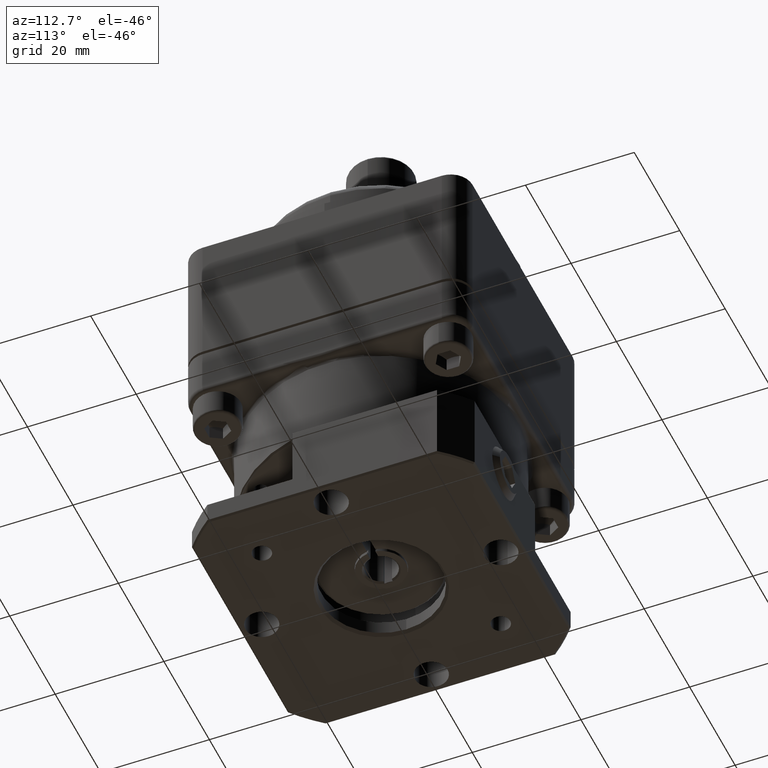
[diagram: clean part render]
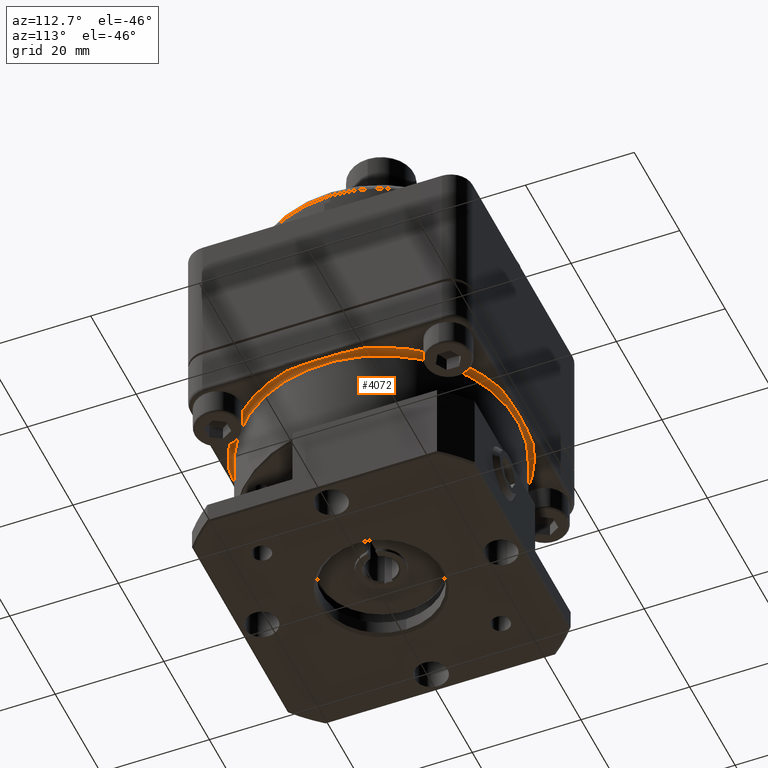
[diagram: same view with one face highlighted and labeled with its STEP entity id]
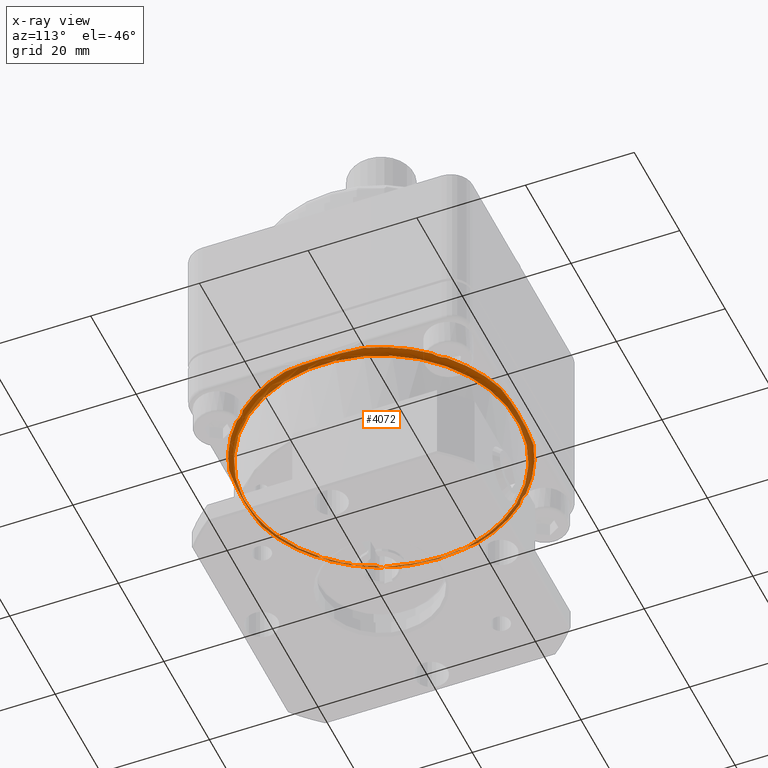
[diagram: x-ray of the same camera — body ghosted, the highlighted face saturated]
A machine part, auxiliary view. The second image highlights one B-rep face of the part: STEP entity #4072.
The next image is the same camera in x-ray: the body ghosted, the highlighted face saturated — about 17% of this face is hidden behind the body in this view.
In plain terms, the highlighted toroidal blend (fillet) surface has major radius 26 mm and minor (blend) radius 1 mm.
Its self-contained STEP definition (entity closure, byte-faithful):
#3640=CARTESIAN_POINT('',(17.415398523369888,19.305540507124014,-9.499999999999995));
#3641=VERTEX_POINT('',#3640);
#3642=CARTESIAN_POINT('',(19.305540507124032,17.415398523369866,-9.499999999999995));
#3643=VERTEX_POINT('',#3642);
#3644=CARTESIAN_POINT('',(17.415398523369884,19.305540507124014,-9.499999999999998));
#3645=CARTESIAN_POINT('',(17.433852207962804,19.268802625945078,-9.499999999999998));
#3646=CARTESIAN_POINT('',(17.453070473131625,19.231871299458831,-9.500334162247619));
#3647=CARTESIAN_POINT('',(17.58383669251451,18.989563746952662,-9.504288526146175));
#3648=CARTESIAN_POINT('',(17.711476112154426,18.793289759055384,-9.515156585401495));
#3649=CARTESIAN_POINT('',(17.952816894886862,18.482399880623625,-9.527519367216113));
#3650=CARTESIAN_POINT('',(18.056367449770935,18.363306422786636,-9.530974010881842));
#3651=CARTESIAN_POINT('',(18.271938934143567,18.141679793899176,-9.532259354770236));
#3652=CARTESIAN_POINT('',(18.382527724374977,18.039481402539487,-9.530344969710789));
#3653=CARTESIAN_POINT('',(18.653362011893204,17.814645216185856,-9.521444890862904));
#3654=CARTESIAN_POINT('',(18.815937711152582,17.698159713645904,-9.512948882657316));
#3655=CARTESIAN_POINT('',(19.092699706561959,17.527877162380371,-9.502792738402073));
#3656=CARTESIAN_POINT('',(19.199400349492894,17.468713437804592,-9.499999999999998));
#3657=CARTESIAN_POINT('',(19.305540507124032,17.415398523369866,-9.499999999999998));
#3658=B_SPLINE_CURVE_WITH_KNOTS('',3,(#3644,#3645,#3646,#3647,#3648,#3649,#3650,#3651,#3652,#3653,#3654,#3655,#3656,#3657),.UNSPECIFIED.,.F.,.U.,(4,2,2,2,2,2,4),(-0.342064813088808,-0.334727085397335,-0.29413588931509,-0.266961499162975,-0.241027231115857,-0.206420160374695,-0.184739555955387),.UNSPECIFIED.);
#3659=EDGE_CURVE('',#3641,#3643,#3658,.T.);
#3882=CARTESIAN_POINT('',(0.0,-1.415428E-031,-10.499999999999998));
#3883=DIRECTION('',(3.273778E-032,-5.584681E-032,-1.0));
#3884=DIRECTION('',(1.0,0.0,0.0));
#3885=AXIS2_PLACEMENT_3D('',#3882,#3883,#3884);
#3886=TOROIDAL_SURFACE('',#3885,26.0,1.0);
#3887=CARTESIAN_POINT('',(-25.0,-3.061617E-015,-10.499999999999998));
#3888=VERTEX_POINT('',#3887);
#3889=CARTESIAN_POINT('',(0.0,-1.415428E-031,-10.499999999999998));
#3890=DIRECTION('',(0.0,0.0,1.0));
#3891=DIRECTION('',(1.0,0.0,0.0));
#3892=AXIS2_PLACEMENT_3D('',#3889,#3890,#3891);
#3893=CIRCLE('',#3892,25.0);
#3894=EDGE_CURVE('',#3888,#3888,#3893,.T.);
#3895=ORIENTED_EDGE('',*,*,#3894,.T.);
#3896=EDGE_LOOP('',(#3895));
#3897=FACE_OUTER_BOUND('',#3896,.T.);
#3898=ORIENTED_EDGE('',*,*,#3659,.T.);
#3899=CARTESIAN_POINT('',(25.000000000000007,7.141428428542823,-9.499999999999996));
#3900=VERTEX_POINT('',#3899);
#3901=CARTESIAN_POINT('',(-3.273778E-032,-8.569597E-032,-9.499999999999996));
#3902=DIRECTION('',(0.0,0.0,-1.0));
#3903=DIRECTION('',(1.0,0.0,0.0));
#3904=AXIS2_PLACEMENT_3D('',#3901,#3902,#3903);
#3905=CIRCLE('',#3904,26.0);
#3906=EDGE_CURVE('',#3643,#3900,#3905,.T.);
#3907=ORIENTED_EDGE('',*,*,#3906,.T.);
#3908=CARTESIAN_POINT('',(25.000000000000007,-7.141428428542823,-9.499999999999996));
#3909=VERTEX_POINT('',#3908);
#3910=CARTESIAN_POINT('',(25.000000000000007,-7.141428428542822,-9.499999999999996));
#3911=CARTESIAN_POINT('',(25.269644622653637,-5.17651254325431,-9.499999999999996));
#3912=CARTESIAN_POINT('',(25.563130715198696,-1.746906981911026,-9.675663022119279));
#3913=CARTESIAN_POINT('',(25.458019317637437,3.135129083297717,-9.601328803846158));
#3914=CARTESIAN_POINT('',(25.179763081769092,5.831484505017148,-9.499999999999998));
#3915=CARTESIAN_POINT('',(25.000000000000007,7.141428428542822,-9.499999999999998));
#3916=B_SPLINE_CURVE_WITH_KNOTS('',3,(#3910,#3911,#3912,#3913,#3914,#3915),.UNSPECIFIED.,.F.,.U.,(4,1,1,4),(-1.429359257368982,-0.816776718496561,-0.408388359248281,0.0),.UNSPECIFIED.);
#3917=EDGE_CURVE('',#3909,#3900,#3916,.T.);
#3918=ORIENTED_EDGE('',*,*,#3917,.F.);
#3919=CARTESIAN_POINT('',(19.305540507124007,-17.415398523369895,-9.499999999999995));
#3920=VERTEX_POINT('',#3919);
#3921=CARTESIAN_POINT('',(-3.273778E-032,-8.569597E-032,-9.499999999999996));
#3922=DIRECTION('',(0.0,0.0,-1.0));
#3923=DIRECTION('',(1.0,0.0,0.0));
#3924=AXIS2_PLACEMENT_3D('',#3921,#3922,#3923);
#3925=CIRCLE('',#3924,26.0);
#3926=EDGE_CURVE('',#3909,#3920,#3925,.T.);
#3927=ORIENTED_EDGE('',*,*,#3926,.T.);
#3928=CARTESIAN_POINT('',(17.415398523369877,-19.305540507124022,-9.499999999999995));
#3929=VERTEX_POINT('',#3928);
#3930=CARTESIAN_POINT('',(19.305540507124007,-17.415398523369891,-9.499999999999998));
#3931=CARTESIAN_POINT('',(19.268802625945071,-17.433852207962811,-9.499999999999998));
#3932=CARTESIAN_POINT('',(19.231871299458824,-17.453070473131625,-9.500334162247619));
#3933=CARTESIAN_POINT('',(18.989563746952662,-17.583836692514513,-9.504288526146175));
#3934=CARTESIAN_POINT('',(18.793289759055387,-17.711476112154422,-9.515156585401495));
#3935=CARTESIAN_POINT('',(18.482399880623547,-17.952816894886926,-9.527519367216117));
#3936=CARTESIAN_POINT('',(18.3633064227866,-18.056367449770978,-9.530974010881838));
#3937=CARTESIAN_POINT('',(18.141679793899232,-18.271938934143524,-9.532259354770233));
#3938=CARTESIAN_POINT('',(18.039481402539582,-18.38252772437486,-9.530344969710793));
#3939=CARTESIAN_POINT('',(17.814645216185841,-18.653362011893226,-9.521444890862904));
#3940=CARTESIAN_POINT('',(17.698159713645897,-18.815937711152596,-9.512948882657316));
#3941=CARTESIAN_POINT('',(17.527877162380371,-19.092699706561966,-9.502792738402073));
#3942=CARTESIAN_POINT('',(17.468713437804595,-19.199400349492894,-9.499999999999998));
#3943=CARTESIAN_POINT('',(17.415398523369877,-19.305540507124018,-9.499999999999998));
#3944=B_SPLINE_CURVE_WITH_KNOTS('',3,(#3930,#3931,#3932,#3933,#3934,#3935,#3936,#3937,#3938,#3939,#3940,#3941,#3942,#3943),.UNSPECIFIED.,.F.,.U.,(4,2,2,2,2,2,4),(-0.342064813089318,-0.334727085397829,-0.294135889315498,-0.266961499163307,-0.241027231116123,-0.206420160374903,-0.184739555955557),.UNSPECIFIED.);
#3945=EDGE_CURVE('',#3920,#3929,#3944,.T.);
#3946=ORIENTED_EDGE('',*,*,#3945,.T.);
#3947=CARTESIAN_POINT('',(7.141428428542823,-25.000000000000007,-9.499999999999996));
#3948=VERTEX_POINT('',#3947);
#3949=CARTESIAN_POINT('',(-3.273778E-032,-8.569597E-032,-9.499999999999996));
#3950=DIRECTION('',(0.0,0.0,-1.0));
#3951=DIRECTION('',(1.0,0.0,0.0));
#3952=AXIS2_PLACEMENT_3D('',#3949,#3950,#3951);
#3953=CIRCLE('',#3952,26.0);
#3954=EDGE_CURVE('',#3929,#3948,#3953,.T.);
#3955=ORIENTED_EDGE('',*,*,#3954,.T.);
#3956=CARTESIAN_POINT('',(-7.141428428542823,-25.000000000000007,-9.499999999999996));
#3957=VERTEX_POINT('',#3956);
#3958=CARTESIAN_POINT('',(-7.14142842854282,-25.000000000000007,-9.499999999999996));
#3959=CARTESIAN_POINT('',(-5.176512543254308,-25.269644622653637,-9.499999999999996));
#3960=CARTESIAN_POINT('',(-1.746906981911023,-25.563130715198689,-9.675663022119277));
#3961=CARTESIAN_POINT('',(3.135129083297723,-25.458019317637437,-9.601328803846162));
#3962=CARTESIAN_POINT('',(5.831484505017155,-25.179763081769092,-9.499999999999996));
#3963=CARTESIAN_POINT('',(7.141428428542824,-25.000000000000007,-9.499999999999996));
#3964=B_SPLINE_CURVE_WITH_KNOTS('',3,(#3958,#3959,#3960,#3961,#3962,#3963),.UNSPECIFIED.,.F.,.U.,(4,1,1,4),(-1.429359257368983,-0.816776718496562,-0.408388359248281,-1.445530E-016),.UNSPECIFIED.);
#3965=EDGE_CURVE('',#3957,#3948,#3964,.T.);
#3966=ORIENTED_EDGE('',*,*,#3965,.F.);
#3967=CARTESIAN_POINT('',(-17.415398523369895,-19.305540507124007,-9.499999999999995));
#3968=VERTEX_POINT('',#3967);
#3969=CARTESIAN_POINT('',(-3.273778E-032,-8.569597E-032,-9.499999999999996));
#3970=DIRECTION('',(0.0,0.0,-1.0));
#3971=DIRECTION('',(1.0,0.0,0.0));
#3972=AXIS2_PLACEMENT_3D('',#3969,#3970,#3971);
#3973=CIRCLE('',#3972,26.0);
#3974=EDGE_CURVE('',#3957,#3968,#3973,.T.);
#3975=ORIENTED_EDGE('',*,*,#3974,.T.);
#3976=CARTESIAN_POINT('',(-19.305540507124025,-17.415398523369877,-9.499999999999995));
#3977=VERTEX_POINT('',#3976);
#3978=CARTESIAN_POINT('',(-17.415398523369895,-19.305540507124007,-9.499999999999998));
#3979=CARTESIAN_POINT('',(-17.433852207962811,-19.268802625945082,-9.499999999999998));
#3980=CARTESIAN_POINT('',(-17.453070473131625,-19.231871299458842,-9.500334162247617));
#3981=CARTESIAN_POINT('',(-17.583836692514506,-18.989563746952676,-9.504288526146173));
#3982=CARTESIAN_POINT('',(-17.711476112154422,-18.793289759055398,-9.515156585401494));
#3983=CARTESIAN_POINT('',(-17.95281689488688,-18.482399880623614,-9.527519367216113));
#3984=CARTESIAN_POINT('',(-18.056367449770946,-18.363306422786636,-9.530974010881838));
#3985=CARTESIAN_POINT('',(-18.271938934143531,-18.141679793899222,-9.532259354770233));
#3986=CARTESIAN_POINT('',(-18.382527724374892,-18.039481402539558,-9.530344969710791));
#3987=CARTESIAN_POINT('',(-18.653362011893247,-17.814645216185824,-9.521444890862902));
#3988=CARTESIAN_POINT('',(-18.815937711152603,-17.698159713645897,-9.512948882657314));
#3989=CARTESIAN_POINT('',(-19.092699706561952,-17.527877162380385,-9.502792738402073));
#3990=CARTESIAN_POINT('',(-19.199400349492887,-17.468713437804603,-9.499999999999998));
#3991=CARTESIAN_POINT('',(-19.305540507124025,-17.415398523369877,-9.499999999999998));
#3992=B_SPLINE_CURVE_WITH_KNOTS('',3,(#3978,#3979,#3980,#3981,#3982,#3983,#3984,#3985,#3986,#3987,#3988,#3989,#3990,#3991),.UNSPECIFIED.,.F.,.U.,(4,2,2,2,2,2,4),(-0.342064813087696,-0.334727085396252,-0.294135889314158,-0.266961499162139,-0.241027231115121,-0.206420160374106,-0.184739555954886),.UNSPECIFIED.);
#3993=EDGE_CURVE('',#3968,#3977,#3992,.T.);
#3994=ORIENTED_EDGE('',*,*,#3993,.T.);
#3995=CARTESIAN_POINT('',(-25.000000000000007,-7.141428428542823,-9.499999999999996));
#3996=VERTEX_POINT('',#3995);
#3997=CARTESIAN_POINT('',(-3.273778E-032,-8.569597E-032,-9.499999999999996));
#3998=DIRECTION('',(0.0,0.0,-1.0));
#3999=DIRECTION('',(1.0,0.0,0.0));
#4000=AXIS2_PLACEMENT_3D('',#3997,#3998,#3999);
#4001=CIRCLE('',#4000,26.0);
#4002=EDGE_CURVE('',#3977,#3996,#4001,.T.);
#4003=ORIENTED_EDGE('',*,*,#4002,.T.);
#4004=CARTESIAN_POINT('',(-25.000000000000007,7.141428428542823,-9.499999999999996));
#4005=VERTEX_POINT('',#4004);
#4006=CARTESIAN_POINT('',(-25.000000000000007,7.141428428542819,-9.499999999999996));
#4007=CARTESIAN_POINT('',(-25.269644622653637,5.176512543254308,-9.499999999999996));
#4008=CARTESIAN_POINT('',(-25.563130715198685,1.746906981911026,-9.675663022119279));
#4009=CARTESIAN_POINT('',(-25.458019317637437,-3.135129083297719,-9.601328803846158));
#4010=CARTESIAN_POINT('',(-25.179763081769092,-5.83148450501715,-9.499999999999996));
#4011=CARTESIAN_POINT('',(-25.000000000000007,-7.141428428542823,-9.499999999999996));
#4012=B_SPLINE_CURVE_WITH_KNOTS('',3,(#4006,#4007,#4008,#4009,#4010,#4011),.UNSPECIFIED.,.F.,.U.,(4,1,1,4),(-1.429359257368983,-0.816776718496562,-0.408388359248281,-2.220446E-016),.UNSPECIFIED.);
#4013=EDGE_CURVE('',#4005,#3996,#4012,.T.);
#4014=ORIENTED_EDGE('',*,*,#4013,.F.);
#4015=CARTESIAN_POINT('',(-19.305540507124007,17.415398523369895,-9.499999999999995));
#4016=VERTEX_POINT('',#4015);
#4017=CARTESIAN_POINT('',(-3.273778E-032,-8.569597E-032,-9.499999999999996));
#4018=DIRECTION('',(0.0,0.0,-1.0));
#4019=DIRECTION('',(1.0,0.0,0.0));
#4020=AXIS2_PLACEMENT_3D('',#4017,#4018,#4019);
#4021=CIRCLE('',#4020,26.0);
#4022=EDGE_CURVE('',#4005,#4016,#4021,.T.);
#4023=ORIENTED_EDGE('',*,*,#4022,.T.);
#4024=CARTESIAN_POINT('',(-17.415398523369877,19.305540507124022,-9.499999999999995));
#4025=VERTEX_POINT('',#4024);
#4026=CARTESIAN_POINT('',(-19.305540507124007,17.415398523369891,-9.499999999999998));
#4027=CARTESIAN_POINT('',(-19.268802625945071,17.433852207962815,-9.499999999999998));
#4028=CARTESIAN_POINT('',(-19.23187129945882,17.453070473131632,-9.500334162247619));
#4029=CARTESIAN_POINT('',(-18.989563746952655,17.583836692514517,-9.504288526146175));
#4030=CARTESIAN_POINT('',(-18.793289759055373,17.711476112154433,-9.515156585401494));
#4031=CARTESIAN_POINT('',(-18.482399880623596,17.95281689488689,-9.527519367216113));
#4032=CARTESIAN_POINT('',(-18.363306422786618,18.056367449770956,-9.530974010881838));
#4033=CARTESIAN_POINT('',(-18.141679793899211,18.271938934143542,-9.532259354770233));
#4034=CARTESIAN_POINT('',(-18.039481402539547,18.382527724374899,-9.530344969710793));
#4035=CARTESIAN_POINT('',(-17.814645216185813,18.653362011893254,-9.521444890862902));
#4036=CARTESIAN_POINT('',(-17.698159713645886,18.815937711152614,-9.512948882657316));
#4037=CARTESIAN_POINT('',(-17.527877162380385,19.092699706561955,-9.502792738402073));
#4038=CARTESIAN_POINT('',(-17.468713437804599,19.199400349492887,-9.499999999999998));
#4039=CARTESIAN_POINT('',(-17.415398523369877,19.305540507124018,-9.499999999999998));
#4040=B_SPLINE_CURVE_WITH_KNOTS('',3,(#4026,#4027,#4028,#4029,#4030,#4031,#4032,#4033,#4034,#4035,#4036,#4037,#4038,#4039),.UNSPECIFIED.,.F.,.U.,(4,2,2,2,2,2,4),(-0.342064813089368,-0.334727085397873,-0.294135889315508,-0.266961499163305,-0.241027231116111,-0.206420160374862,-0.184739555955498),.UNSPECIFIED.);
#4041=EDGE_CURVE('',#4016,#4025,#4040,.T.);
#4042=ORIENTED_EDGE('',*,*,#4041,.T.);
#4043=CARTESIAN_POINT('',(-7.141428428542823,25.000000000000007,-9.499999999999996));
#4044=VERTEX_POINT('',#4043);
#4045=CARTESIAN_POINT('',(-3.273778E-032,-8.569597E-032,-9.499999999999996));
#4046=DIRECTION('',(0.0,0.0,-1.0));
#4047=DIRECTION('',(1.0,0.0,0.0));
#4048=AXIS2_PLACEMENT_3D('',#4045,#4046,#4047);
#4049=CIRCLE('',#4048,26.0);
#4050=EDGE_CURVE('',#4025,#4044,#4049,.T.);
#4051=ORIENTED_EDGE('',*,*,#4050,.T.);
#4052=CARTESIAN_POINT('',(7.141428428542823,25.000000000000007,-9.499999999999996));
#4053=VERTEX_POINT('',#4052);
#4054=CARTESIAN_POINT('',(7.141428428542822,25.000000000000007,-9.499999999999996));
#4055=CARTESIAN_POINT('',(5.176512543254312,25.269644622653637,-9.499999999999996));
#4056=CARTESIAN_POINT('',(1.746906981911028,25.563130715198689,-9.675663022119274));
#4057=CARTESIAN_POINT('',(-3.135129083297718,25.45801931763744,-9.601328803846164));
#4058=CARTESIAN_POINT('',(-5.831484505017146,25.179763081769092,-9.499999999999998));
#4059=CARTESIAN_POINT('',(-7.141428428542821,25.000000000000007,-9.499999999999998));
#4060=B_SPLINE_CURVE_WITH_KNOTS('',3,(#4054,#4055,#4056,#4057,#4058,#4059),.UNSPECIFIED.,.F.,.U.,(4,1,1,4),(-1.429359257368982,-0.816776718496561,-0.408388359248281,0.0),.UNSPECIFIED.);
#4061=EDGE_CURVE('',#4053,#4044,#4060,.T.);
#4062=ORIENTED_EDGE('',*,*,#4061,.F.);
#4063=CARTESIAN_POINT('',(-3.273778E-032,-8.569597E-032,-9.499999999999996));
#4064=DIRECTION('',(0.0,0.0,-1.0));
#4065=DIRECTION('',(1.0,0.0,0.0));
#4066=AXIS2_PLACEMENT_3D('',#4063,#4064,#4065);
#4067=CIRCLE('',#4066,26.0);
#4068=EDGE_CURVE('',#4053,#3641,#4067,.T.);
#4069=ORIENTED_EDGE('',*,*,#4068,.T.);
#4070=EDGE_LOOP('',(#3898,#3907,#3918,#3927,#3946,#3955,#3966,#3975,#3994,#4003,#4014,#4023,#4042,#4051,#4062,#4069));
#4071=FACE_BOUND('',#4070,.T.);
#4072=ADVANCED_FACE('',(#3897,#4071),#3886,.F.);